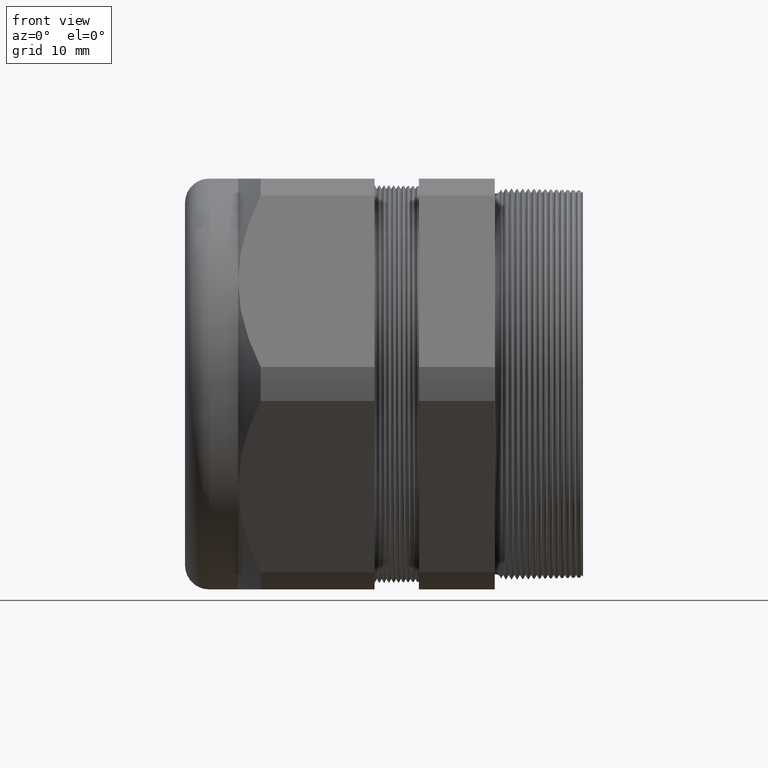
[diagram: clean part render]
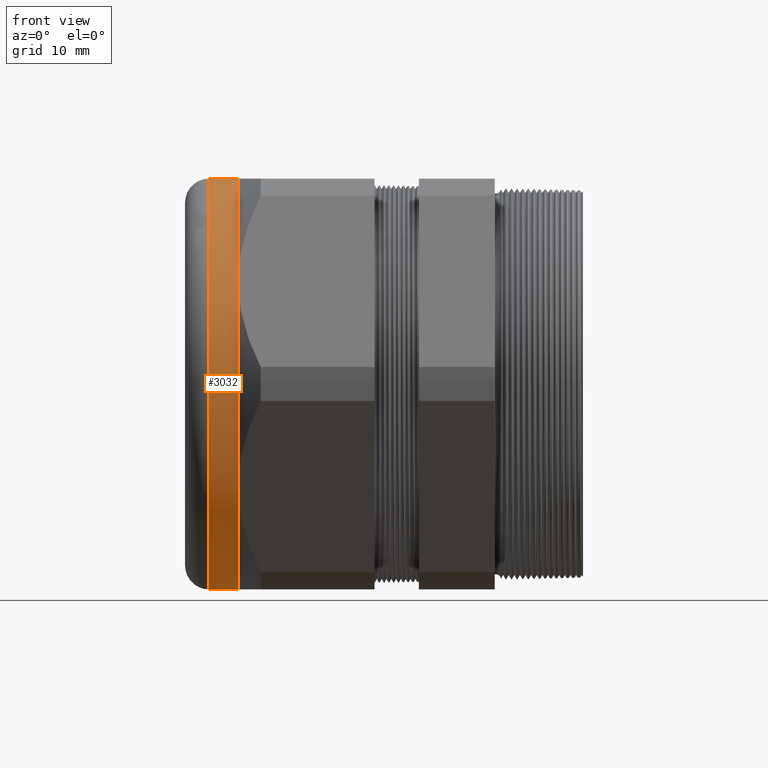
[diagram: same view with one face highlighted and labeled with its STEP entity id]
A machine part, front view. The second image highlights one B-rep face of the part: STEP entity #3032.
In plain terms, the highlighted cylindrical surface (partial cylindrical patch) has radius 32.512 mm, axis along (1, 0, 0).
Its self-contained STEP definition (entity closure, byte-faithful):
#33 = CARTESIAN_POINT ( 'NONE',  ( -1.909291999999999500, -1.108512516844081500, -0.6399999999999999000 ) ) ;
#271 = DIRECTION ( 'NONE',  ( 0.0000000000000000000, 0.0000000000000000000, 1.000000000000000000 ) ) ;
#272 = DIRECTION ( 'NONE',  ( 1.000000000000000000, 0.0000000000000000000, 0.0000000000000000000 ) ) ;
#273 = CARTESIAN_POINT ( 'NONE',  ( -2.089999999999999400, 0.0000000000000000000, 0.0000000000000000000 ) ) ;
#274 = AXIS2_PLACEMENT_3D ( 'NONE', #273, #272, #271 ) ;
#275 = CIRCLE ( 'NONE', #274, 1.280000000000000000 ) ;
#330 = AXIS2_PLACEMENT_3D ( 'NONE', #395, #394, #393 ) ;
#331 = CIRCLE ( 'NONE', #330, 1.280000000000000000 ) ;
#377 = DIRECTION ( 'NONE',  ( 0.0000000000000000000, 0.0000000000000000000, -1.000000000000000000 ) ) ;
#378 = DIRECTION ( 'NONE',  ( 1.000000000000000000, 0.0000000000000000000, 0.0000000000000000000 ) ) ;
#379 = CARTESIAN_POINT ( 'NONE',  ( -1.909291999999999500, 0.0000000000000000000, 0.0000000000000000000 ) ) ;
#380 = AXIS2_PLACEMENT_3D ( 'NONE', #379, #378, #377 ) ;
#385 = CIRCLE ( 'NONE', #380, 1.280000000000000000 ) ;
#388 = DIRECTION ( 'NONE',  ( 0.0000000000000000000, 0.0000000000000000000, -1.000000000000000000 ) ) ;
#389 = DIRECTION ( 'NONE',  ( 1.000000000000000000, 0.0000000000000000000, 0.0000000000000000000 ) ) ;
#390 = CARTESIAN_POINT ( 'NONE',  ( -1.909291999999999500, 0.0000000000000000000, 0.0000000000000000000 ) ) ;
#391 = AXIS2_PLACEMENT_3D ( 'NONE', #390, #389, #388 ) ;
#392 = CIRCLE ( 'NONE', #391, 1.280000000000000000 ) ;
#393 = DIRECTION ( 'NONE',  ( 0.0000000000000000000, 0.0000000000000000000, -1.000000000000000000 ) ) ;
#394 = DIRECTION ( 'NONE',  ( 1.000000000000000000, 0.0000000000000000000, 0.0000000000000000000 ) ) ;
#395 = CARTESIAN_POINT ( 'NONE',  ( -1.909291999999999500, 0.0000000000000000000, 0.0000000000000000000 ) ) ;
#440 = DIRECTION ( 'NONE',  ( 0.0000000000000000000, 0.0000000000000000000, -1.000000000000000000 ) ) ;
#441 = DIRECTION ( 'NONE',  ( 1.000000000000000000, 0.0000000000000000000, 0.0000000000000000000 ) ) ;
#442 = CARTESIAN_POINT ( 'NONE',  ( 0.0000000000000000000, 0.0000000000000000000, 0.0000000000000000000 ) ) ;
#443 = AXIS2_PLACEMENT_3D ( 'NONE', #442, #441, #440 ) ;
#444 = CYLINDRICAL_SURFACE ( 'NONE', #443, 1.280000000000000000 ) ;
#445 = FACE_OUTER_BOUND ( 'NONE', #2954, .T. ) ;
#1460 = CARTESIAN_POINT ( 'NONE',  ( -2.089999999999999400, 1.567547902908612300E-016, 1.280000000000000000 ) ) ;
#1461 = CARTESIAN_POINT ( 'NONE',  ( -2.089999999999999400, 0.0000000000000000000, -1.280000000000000000 ) ) ;
#1580 = CARTESIAN_POINT ( 'NONE',  ( -1.909291999999999500, 0.0000000000000000000, -1.280000000000000000 ) ) ;
#1608 = VECTOR ( 'NONE', #1667, 39.37007874015748100 ) ;
#1609 = CARTESIAN_POINT ( 'NONE',  ( 0.0000000000000000000, 0.0000000000000000000, -1.280000000000000000 ) ) ;
#1610 = LINE ( 'NONE', #1609, #1608 ) ;
#1633 = DIRECTION ( 'NONE',  ( 1.000000000000000000, 0.0000000000000000000, 0.0000000000000000000 ) ) ;
#1634 = VECTOR ( 'NONE', #1633, 39.37007874015748100 ) ;
#1635 = CARTESIAN_POINT ( 'NONE',  ( 0.0000000000000000000, 1.567547902908612300E-016, 1.280000000000000000 ) ) ;
#1636 = LINE ( 'NONE', #1635, #1634 ) ;
#1639 = CARTESIAN_POINT ( 'NONE',  ( -1.909291999999999500, 0.0000000000000000000, 1.280000000000000000 ) ) ;
#1667 = DIRECTION ( 'NONE',  ( 1.000000000000000000, 0.0000000000000000000, 0.0000000000000000000 ) ) ;
#1868 = VERTEX_POINT ( 'NONE', #3890 ) ;
#2829 = VERTEX_POINT ( 'NONE', #33 ) ;
#2954 = EDGE_LOOP ( 'NONE', ( #2956, #2957, #2960, #2996, #2998, #3000 ) ) ;
#2956 = ORIENTED_EDGE ( 'NONE', *, *, #5887, .F. ) ;
#2957 = ORIENTED_EDGE ( 'NONE', *, *, #2959, .T. ) ;
#2959 = EDGE_CURVE ( 'NONE', #5805, #5804, #275, .T. ) ;
#2960 = ORIENTED_EDGE ( 'NONE', *, *, #5901, .T. ) ;
#2996 = ORIENTED_EDGE ( 'NONE', *, *, #2997, .F. ) ;
#2997 = EDGE_CURVE ( 'NONE', #2829, #5878, #331, .T. ) ;
#2998 = ORIENTED_EDGE ( 'NONE', *, *, #2999, .F. ) ;
#2999 = EDGE_CURVE ( 'NONE', #1868, #2829, #392, .T. ) ;
#3000 = ORIENTED_EDGE ( 'NONE', *, *, #3002, .F. ) ;
#3002 = EDGE_CURVE ( 'NONE', #5879, #1868, #385, .T. ) ;
#3032 = ADVANCED_FACE ( 'NONE', ( #445 ), #444, .T. ) ;
#3890 = CARTESIAN_POINT ( 'NONE',  ( -1.909291999999999500, -1.108512516844082400, 0.6399999999999993500 ) ) ;
#5804 = VERTEX_POINT ( 'NONE', #1461 ) ;
#5805 = VERTEX_POINT ( 'NONE', #1460 ) ;
#5878 = VERTEX_POINT ( 'NONE', #1580 ) ;
#5879 = VERTEX_POINT ( 'NONE', #1639 ) ;
#5887 = EDGE_CURVE ( 'NONE', #5805, #5879, #1636, .T. ) ;
#5901 = EDGE_CURVE ( 'NONE', #5804, #5878, #1610, .T. ) ;